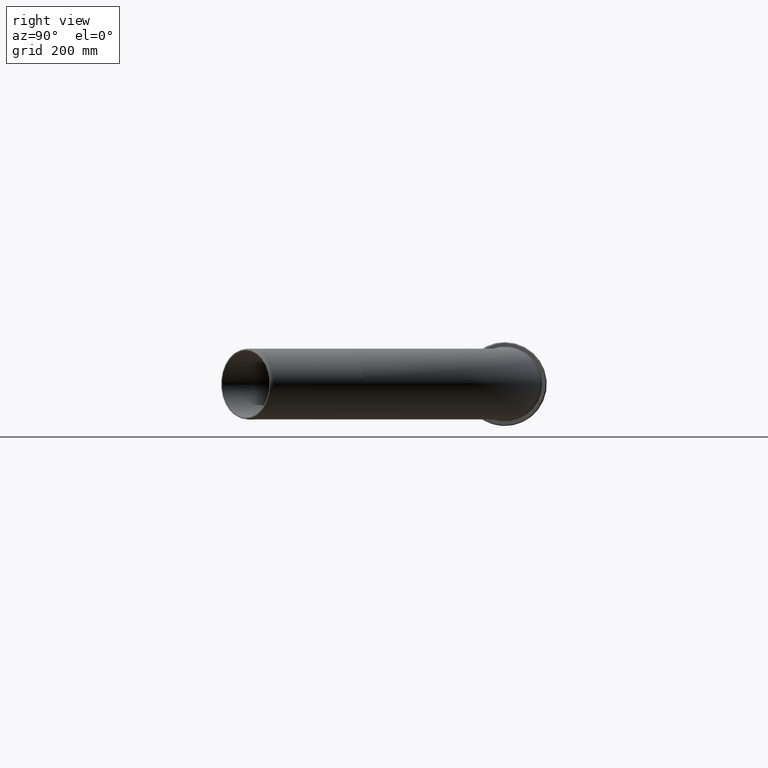
[diagram: clean part render]
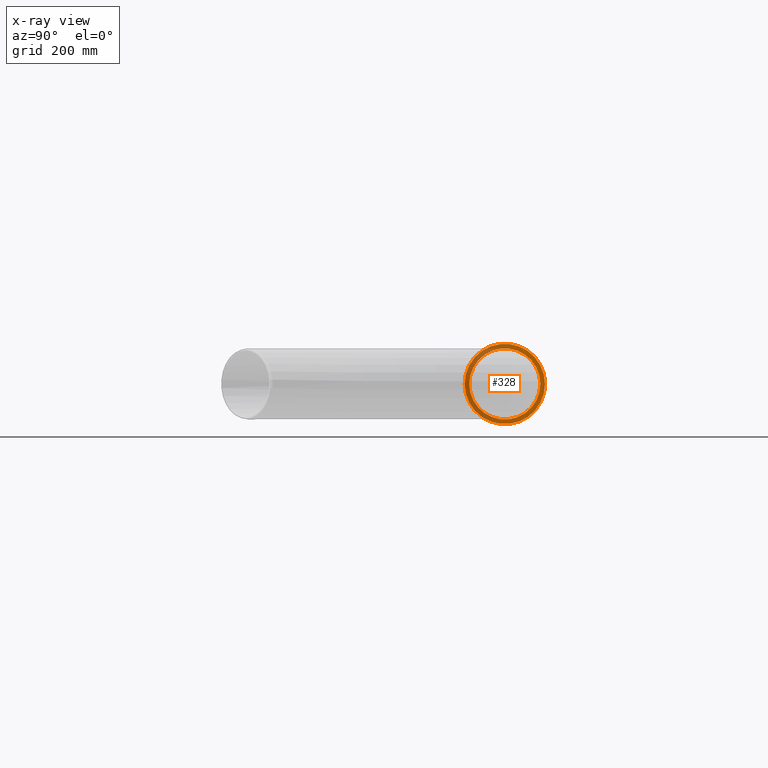
[diagram: x-ray — body ghosted, one internal face saturated and labeled with its STEP entity id]
A machine part, right view, then the same camera in x-ray: the body is ghosted and one INTERNAL B-rep face — a face not visible from any outside direction — is saturated and labeled: STEP entity #328.
In plain terms, the highlighted planar face has unit normal (-1, 0, 0).
Its self-contained STEP definition (entity closure, byte-faithful):
#22=FACE_BOUND('',#79,.T.);
#28=PLANE('',#396);
#52=FACE_OUTER_BOUND('',#78,.T.);
#78=EDGE_LOOP('',(#272));
#79=EDGE_LOOP('',(#273));
#141=CIRCLE('',#397,70.9);
#142=CIRCLE('',#398,62.7);
#169=VERTEX_POINT('',#600);
#170=VERTEX_POINT('',#602);
#205=EDGE_CURVE('',#169,#169,#141,.F.);
#206=EDGE_CURVE('',#170,#170,#142,.F.);
#272=ORIENTED_EDGE('',*,*,#205,.T.);
#273=ORIENTED_EDGE('',*,*,#206,.F.);
#328=ADVANCED_FACE('',(#52,#22),#28,.F.);
#396=AXIS2_PLACEMENT_3D('',#599,#490,#491);
#397=AXIS2_PLACEMENT_3D('',#601,#492,#493);
#398=AXIS2_PLACEMENT_3D('',#603,#494,#495);
#490=DIRECTION('center_axis',(-1.,0.,0.));
#491=DIRECTION('ref_axis',(0.,0.,1.));
#492=DIRECTION('center_axis',(-1.,0.,0.));
#493=DIRECTION('ref_axis',(0.,1.,0.));
#494=DIRECTION('center_axis',(-1.,0.,0.));
#495=DIRECTION('ref_axis',(0.,1.,0.));
#599=CARTESIAN_POINT('Origin',(-153.625,74.,0.));
#600=CARTESIAN_POINT('',(-153.625,-70.9,8.68274580595473E-15));
#601=CARTESIAN_POINT('Origin',(-153.625,0.,0.));
#602=CARTESIAN_POINT('',(-153.625,-62.7,7.6785354306539E-15));
#603=CARTESIAN_POINT('Origin',(-153.625,0.,0.));